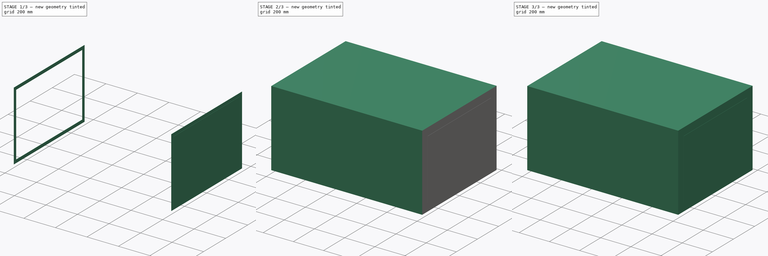
[diagram: build sequence overview — one tinted view per stage of 3, left to right]
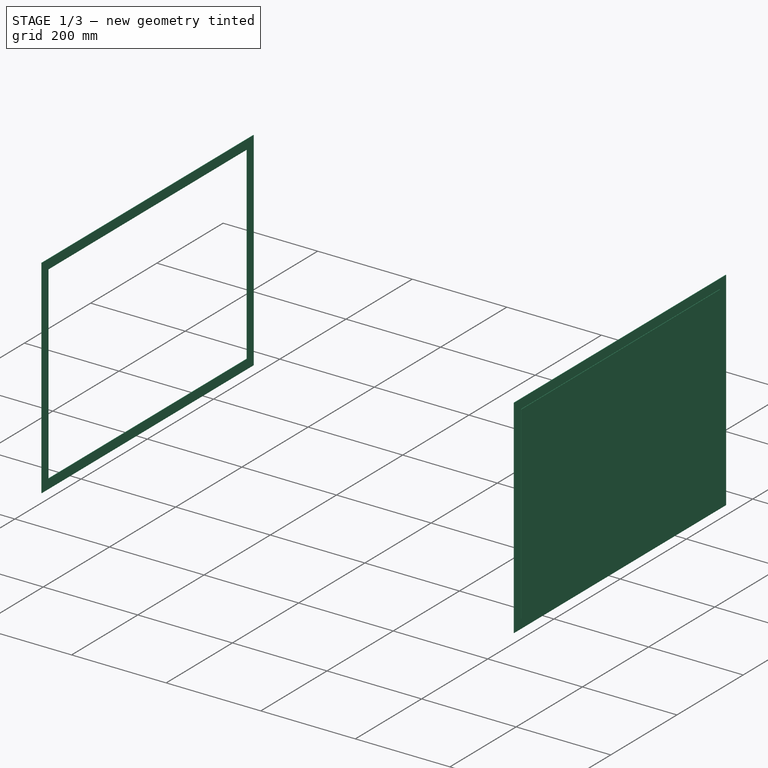
[diagram: stage 1 of 3 — iso view after this stage's code; geometry added in this stage tinted green]
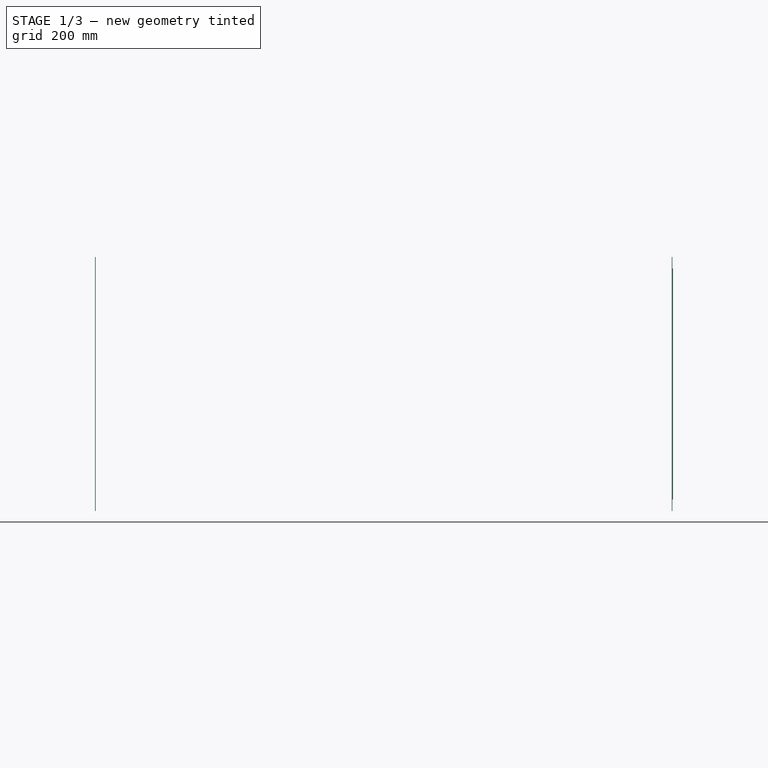
[diagram: stage 1 of 3 — front view after this stage's code; geometry added in this stage tinted green]
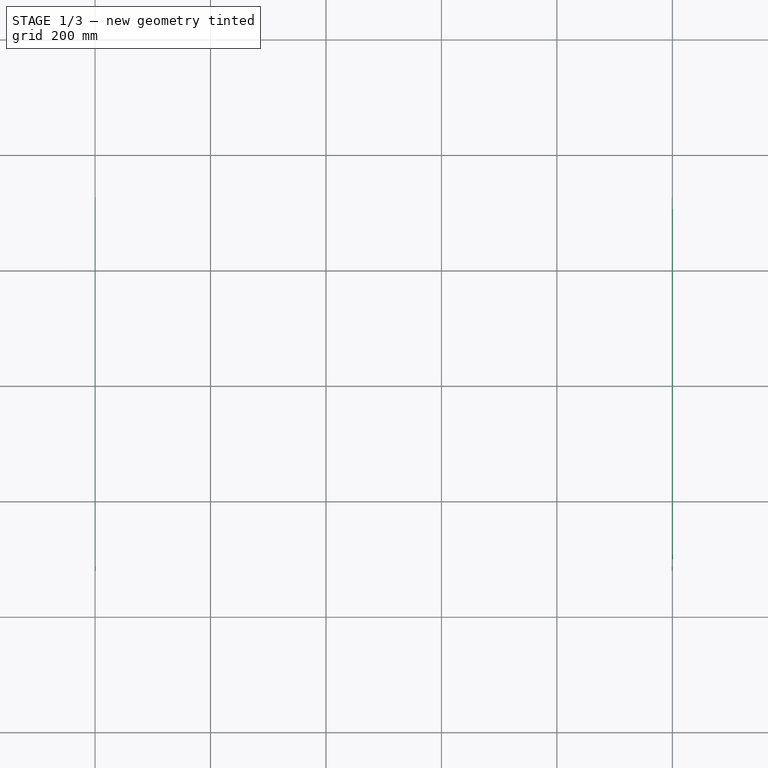
[diagram: stage 1 of 3 — top view after this stage's code; geometry added in this stage tinted green]
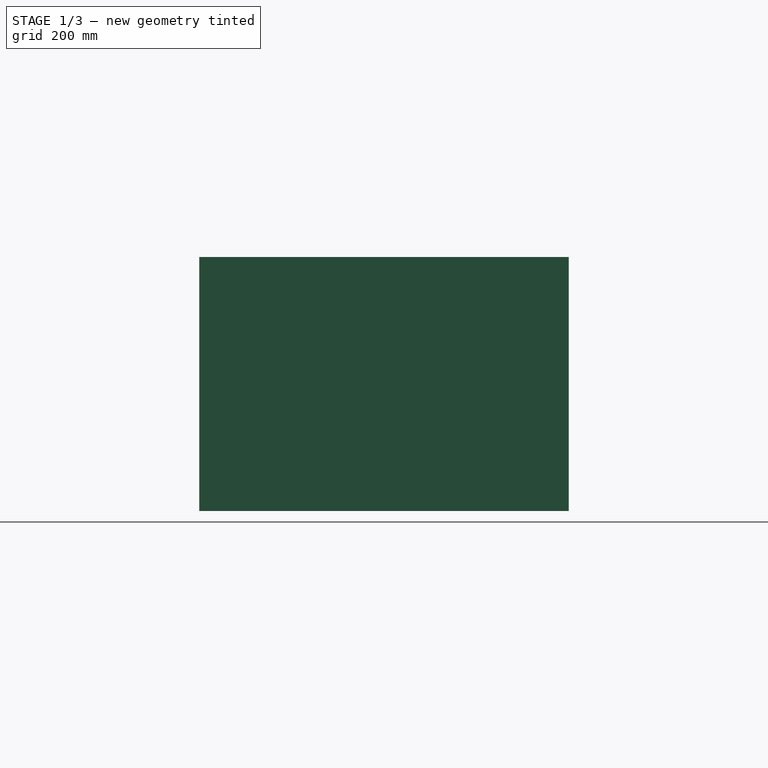
[diagram: stage 1 of 3 — right view after this stage's code; geometry added in this stage tinted green]
FCSTD DOCUMENT  (FreeCAD 1.0R38641 +468 (Git))
Label: Duct_linear_rectangular_complete_R06
License: Creative Commons Attribution 3.0
LicenseURL: https://creativecommons.org/licenses/by/3.0/
objects: Sketcher::SketchObject×9, App::DocumentObjectGroup×4, TechDraw::DrawViewPart×4, Part::Sweep×3, Part::Extrusion×3, App::MaterialObjectPython×2, Part::Cut×2, Spreadsheet::Sheet×1, TechDraw::DrawSVGTemplate×1, TechDraw::DrawViewSpreadsheet×1, Part::Part2DObjectPython×1, App::TextDocument×1, App::VarSet×1, TechDraw::DrawViewSection×1, TechDraw::DrawPage×1, App::DocumentObjectGroupPython×1
note: 27 computed .brp shape members not serialized (recipe doc carries the construction recipe); baked Part::Feature solids carry a one-line shape summary decoded from their .brp

FEATURE [TechDraw::DrawViewPart] View  label="Isometric"
  CoarseView = false
  Direction = (0.57735,-0.57735,0.57735)
  Focus = 100
  HardHidden = false
  IsoCount = 0
  IsoHidden = false
  IsoVisible = false
  LockPosition = false
  Perspective = false
  Rotation = 0
  Scale = 0.05
  ScaleType = 2
  ScrubCount = 0
  SeamHidden = false
  SeamVisible = true
  SmoothHidden = false
  SmoothVisible = true
  Source = -> [Cut,Cut001]
  X = 323.939
  XDirection = (0.707107,0.707107,0)
  Y = 221.919
  expr: Visibility = VarSet.Insulation_Insulation
FEATURE [TechDraw::DrawViewPart] View001  label="View 01"
  CoarseView = false
  Direction = (1,0,0)
  Focus = 100
  HardHidden = false
  IsoCount = 0
  IsoHidden = false
  IsoVisible = false
  LockPosition = false
  Perspective = false
  Rotation = 0
  Scale = 0.05
  ScaleType = 2
  ScrubCount = 0
  SeamHidden = false
  SeamVisible = true
  SmoothHidden = false
  SmoothVisible = true
  Source = -> [Cut,Cut001]
  X = 80.1145
  XDirection = (0,1,0)
  Y = 219.281
  expr: Visibility = VarSet.Insulation_Insulation
FEATURE [TechDraw::DrawViewPart] View002  label="View 02"
  CoarseView = false
  Direction = (-1,0,0)
  Focus = 100
  HardHidden = false
  IsoCount = 0
  IsoHidden = false
  IsoVisible = false
  LockPosition = false
  Perspective = false
  Rotation = 0
  Scale = 0.05
  ScaleType = 2
  ScrubCount = 0
  SeamHidden = false
  SeamVisible = true
  SmoothHidden = false
  SmoothVisible = true
  Source = -> [Cut,Cut001]
  X = 82.0365
  XDirection = (0,-1,0)
  Y = 94.9669
  expr: Visibility = VarSet.Insulation_Insulation
FEATURE [TechDraw::DrawViewPart] View003  label="View 03"
  CoarseView = false
  Direction = (0,-1,0)
  Focus = 100
  HardHidden = false
  IsoCount = 0
  IsoHidden = false
  IsoVisible = false
  LockPosition = false
  Perspective = false
  Rotation = 0
  Scale = 0.05
  ScaleType = 2
  ScrubCount = 0
  SeamHidden = false
  SeamVisible = true
  SmoothHidden = false
  SmoothVisible = true
  Source = -> [Cut,Cut001]
  X = 186.853
  XDirection = (1,0,0)
  Y = 93.0197
  expr: Visibility = VarSet.Insulation_Insulation
FEATURE [TechDraw::DrawViewSection] SectionView  label="Section 01"
  BaseView = -> View003
  CoarseView = false
  CutSurfaceDisplay = 2
  Direction = (1e-16,0,-1)
  FileGeomPattern = <path>
  FileHatchPattern = <path>
  Focus = 100
  FuseBeforeCut = false
  HardHidden = false
  HatchOffset = (0,0,0)
  HatchRotation = 0
  HatchScale = 1
  IsoCount = 0
  IsoHidden = false
  IsoVisible = false
  LockPosition = false
  NameGeomPattern = Diamante
  Perspective = false
  Rotation = 0
  Scale = 0.05
  ScaleType = 2
  ScrubCount = 0
  SeamHidden = false
  SeamVisible = true
  SectionDirection = 4
  SectionLineStretch = 1
  SectionNormal = (1e-16,0,-1)
  SectionOrigin = (495,0,0)
  SmoothHidden = false
  SmoothVisible = true
  Source = -> [Cut,Cut001]
  TrimAfterCut = false
  UsePreviousCut = false
  X = 198.666
  XDirection = (1,0,1e-16)
  Y = 215.282
  expr: Visibility = VarSet.Insulation_Insulation
FEATURE [TechDraw::DrawPage] Page  label="Sheet_01"
  KeepUpdated = true
  NextBalloonIndex = 1
  ProjectionType = 0
  Template = -> Template
  Views = -> [Sheet,View,View001,View002,View003,SectionView]
FEATURE [App::DocumentObjectGroup] Group002  label="Drawings_"
  Group = -> [Page]
FEATURE [App::DocumentObjectGroupPython] MaterialContainer001  label="Materials001"  # scripted group (container) (typed FeaturePython)
  Group = -> [Material049,Material050]
FEATURE [Part::Extrusion] Extrude  label="Flange1_"
  Area = 41600
  Base = -> Sketch026
  Dir = (1,0,0)
  DirMode = 2
  FaceMakerClass = Part::FaceMakerBullseye
  FaceMakerMode = 3
  LengthFwd = 1
  LengthRev = 0
  Solid = true
  Symmetric = false
  expr: Area = .Shape.Face9.Area
  expr: LengthFwd = VarSet.Flange_Thickness
  expr: Visibility = VarSet.Flange_Flange1 * (1 - VarSet.Duct_Show_volume_only)
FEATURE [Part::Extrusion] Extrude001  label="Flange2_"
  Area = 41600
  Base = -> Sketch027
  Dir = (1,0,0)
  DirMode = 2
  FaceMakerClass = Part::FaceMakerBullseye
  FaceMakerMode = 3
  LengthFwd = 1
  LengthRev = 0
  Reversed = true
  Solid = true
  Symmetric = false
  expr: Area = .Shape.Face9.Area
  expr: LengthFwd = VarSet.Flange_Thickness
  expr: Visibility = VarSet.Flange_Flange2 * (1 - VarSet.Duct_Show_volume_only)
FEATURE [Part::Extrusion] Extrude002  label="Closure_"
  Area = 240000
  Base = -> Sketch038
  Dir = (1,0,0)
  DirMode = 2
  FaceMakerClass = Part::FaceMakerBullseye
  FaceMakerMode = 3
  LengthFwd = 1
  LengthRev = 0
  Material = -> Material049
  Solid = true
  Symmetric = false
  expr: Area = .Shape.Face5.Area
  expr: LengthFwd = VarSet.Flange_Thickness
  expr: Material = VarSet.Materials_Sheet_metal
  expr: Visibility = VarSet.Duct_Opening2_closure * (1 - VarSet.Duct_Show_volume_only)
FEATURE [App::DocumentObjectGroup] Group  label="Components"
  Group = -> [Cut,Extrude,Extrude001,Cut001,Extrude002]
FEATURE [App::DocumentObjectGroup] Group003  label="Duct_linear_rectangular_#_"
  Group = -> [VarSet,Group,Group001,Group002,Text_document,MaterialContainer001]
note: 2 file-system paths scrubbed to <path> (originals preserved in the JSON sidecar)
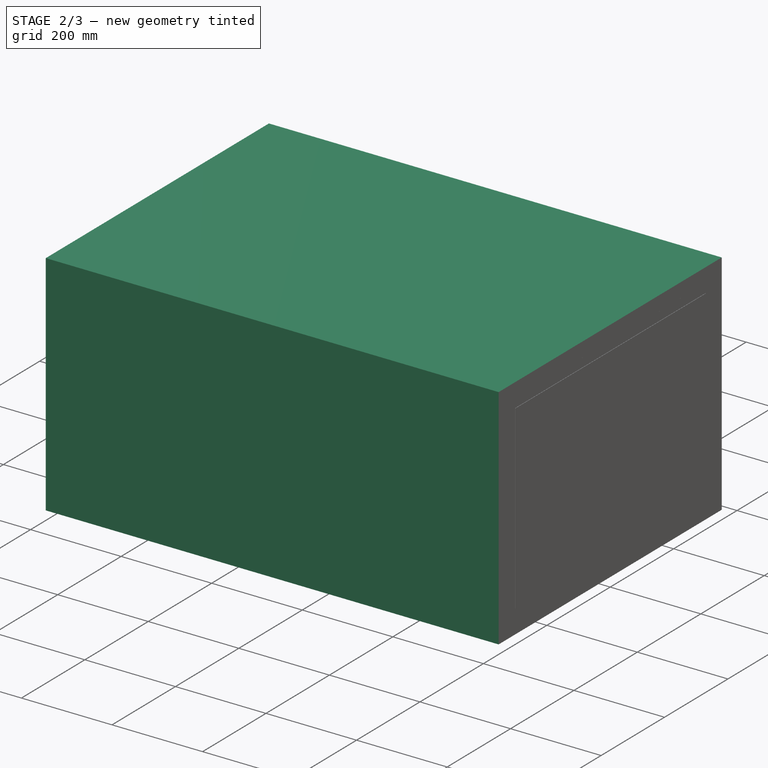
[diagram: stage 2 of 3 — iso view after this stage's code; geometry added in this stage tinted green]
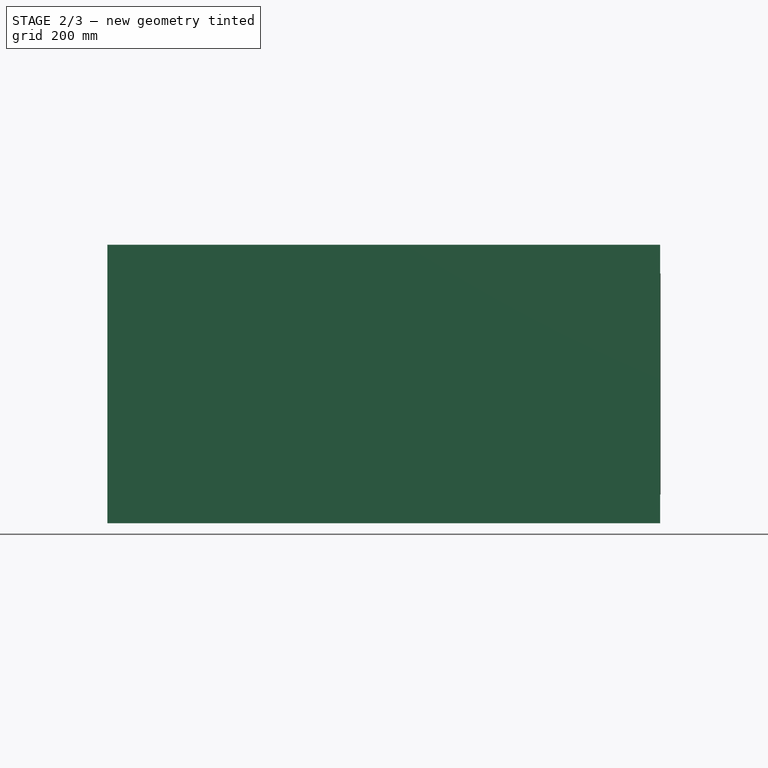
[diagram: stage 2 of 3 — front view after this stage's code; geometry added in this stage tinted green]
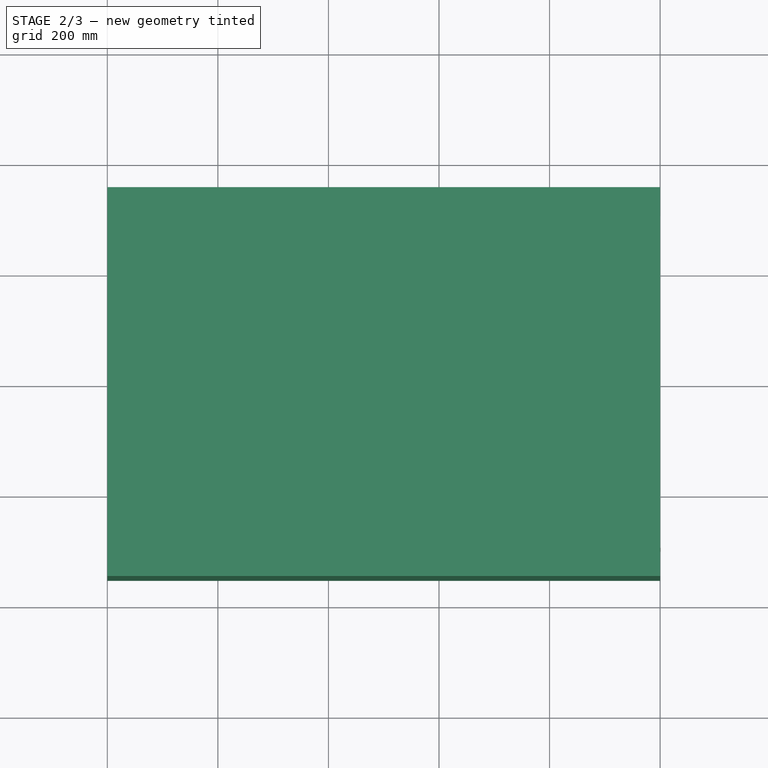
[diagram: stage 2 of 3 — top view after this stage's code; geometry added in this stage tinted green]
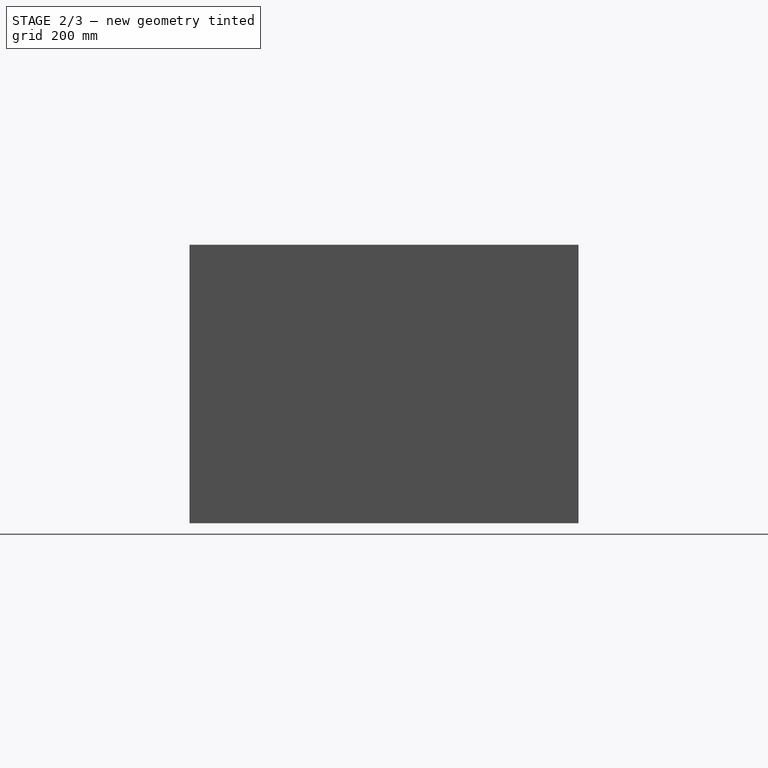
[diagram: stage 2 of 3 — right view after this stage's code; geometry added in this stage tinted green]
FEATURE [Sketcher::SketchObject] Sketch034  label="Opening_01_external_rectangular_"
  ArcFitTolerance = 0
  AttachmentOffset = pos=(0,0,-500) rot=(0,0,1;0rad)
  AttachmentSupport = -> [Line]
  FullyConstrained = true
  MakeInternals = false
  MapMode = 45
  Placement = pos=(0,0,0) rot=(0.57735,0.57735,0.57735;2.0944rad)
  expr: .AttachmentOffset.Base.z = -VarSet.Duct_Axis.Length / 2
  expr: .Constraints.Height = VarSet.Duct_Opening1_height + 2 * VarSet.Duct_Sheet_thickness
  expr: .Constraints.Width = VarSet.Duct_Opening1_width + 2 * VarSet.Duct_Sheet_thickness
  expr: AttachmentSupport = VarSet.Duct_Axis
  expr: MapReversed = VarSet.Duct_Flip_axis
  sketch-geometry (6):
    g0: LineSegment StartX=-301 StartY=201 StartZ=0 EndX=301 EndY=201 EndZ=0
    g1: LineSegment StartX=301 StartY=201 StartZ=0 EndX=301 EndY=-201 EndZ=0
    g2: LineSegment StartX=301 StartY=-201 StartZ=0 EndX=-301 EndY=-201 EndZ=0
    g3: LineSegment StartX=-301 StartY=-201 StartZ=0 EndX=-301 EndY=201 EndZ=0
    g4: LineSegment [constr] StartX=-301 StartY=201 StartZ=0 EndX=301 EndY=-201 EndZ=0
    g5: LineSegment [constr] StartX=-301 StartY=-201 StartZ=0 EndX=301 EndY=201 EndZ=0
  constraints (16):
    c: Coincident(g0,g1)
    c: Coincident(g1,g2)
    c: Coincident(g2,g3)
    c: Coincident(g3,g0)
    c: Horizontal(g0)
    c: Horizontal(g2)
    c: Vertical(g1)
    c: Vertical(g3)
    c: Coincident(g4,g0)
    c: Coincident(g4,g1)
    c: Coincident(g5,g2)
    c: Coincident(g5,g0)
    c: PointOnObject(g-1,g5)
    c: PointOnObject(g-1,g4)
    c: DistanceX(g0,g0) = 602  'Width'
    c: DistanceY(g1,g1) = 402  'Height'
FEATURE [Sketcher::SketchObject] Sketch035  label="Opening_02_external_rectangular_"
  ArcFitTolerance = 0
  AttachmentOffset = pos=(0,0,500) rot=(0,0,1;0rad)
  AttachmentSupport = -> [Line]
  FullyConstrained = true
  MakeInternals = false
  MapMode = 45
  Placement = pos=(1000,0,0) rot=(0.57735,0.57735,0.57735;2.0944rad)
  expr: .AttachmentOffset.Base.z = VarSet.Duct_Axis.Length / 2
  expr: .Constraints.Height = VarSet.Duct_Opening2_height + 2 * VarSet.Duct_Sheet_thickness
  expr: .Constraints.Horizontal_position = VarSet.Duct_Opening2_horizontal_position
  expr: .Constraints.Vertical_position = VarSet.Duct_Opening2_vertical_position
  expr: .Constraints.Width = VarSet.Duct_Opening2_width + 2 * VarSet.Duct_Sheet_thickness
  expr: AttachmentSupport = VarSet.Duct_Axis
  expr: MapReversed = VarSet.Duct_Flip_axis
  sketch-geometry (7):
    g0: LineSegment StartX=-301 StartY=201 StartZ=0 EndX=301 EndY=201 EndZ=0
    g1: LineSegment StartX=301 StartY=201 StartZ=0 EndX=301 EndY=-201 EndZ=0
    g2: LineSegment StartX=301 StartY=-201 StartZ=0 EndX=-301 EndY=-201 EndZ=0
    g3: LineSegment StartX=-301 StartY=-201 StartZ=0 EndX=-301 EndY=201 EndZ=0
    g4: LineSegment [constr] StartX=-301 StartY=201 StartZ=0 EndX=301 EndY=-201 EndZ=0
    g5: LineSegment [constr] StartX=-301 StartY=-201 StartZ=0 EndX=301 EndY=201 EndZ=0
    g6: GeomPoint [constr] X=0 Y=0 Z=0
  constraints (18):
    c: Coincident(g0,g1)
    c: Coincident(g1,g2)
    c: Coincident(g2,g3)
    c: Coincident(g3,g0)
    c: Horizontal(g0)
    c: Horizontal(g2)
    c: Vertical(g1)
    c: Vertical(g3)
    c: Coincident(g4,g0)
    c: Coincident(g4,g1)
    c: Coincident(g5,g2)
    c: Coincident(g5,g0)
    c: DistanceX(g0,g0) = 602  'Width'
    c: DistanceY(g1,g1) = 402  'Height'
    c: PointOnObject(g6,g4)
    c: PointOnObject(g6,g5)
    c: DistanceX(g-1,g6) = 0  'Horizontal_position'
    c: DistanceY(g-1,g6) = 0  'Vertical_position'
FEATURE [Part::Sweep] Sweep002  label="Sweep001_external_volume"
  Frenet = true
  Sections = -> [Sketch034,Sketch035]
  Solid = true
  Spine = -> Line
  Transition = 1
  expr: Spine = VarSet.Duct_Axis
  expr: Visibility = VarSet.Duct_Show_volume_only
FEATURE [Sketcher::SketchObject] Sketch036  label="Opening_01_external_insulation_rectangular_"
  ArcFitTolerance = 0
  AttachmentOffset = pos=(0,0,-500) rot=(0,0,1;0rad)
  AttachmentSupport = -> [Line]
  FullyConstrained = true
  MakeInternals = false
  MapMode = 45
  Placement = pos=(0,0,0) rot=(0.57735,0.57735,0.57735;2.0944rad)
  expr: .AttachmentOffset.Base.z = -VarSet.Duct_Axis.Length / 2
  expr: .Constraints.Height = VarSet.Duct_Opening1_height + 2 * VarSet.Duct_Sheet_thickness + 2 * VarSet.Insulation_Thickness
  expr: .Constraints.Width = VarSet.Duct_Opening1_width + 2 * VarSet.Duct_Sheet_thickness + 2 * VarSet.Insulation_Thickness
  expr: AttachmentSupport = VarSet.Duct_Axis
  expr: MapReversed = VarSet.Duct_Flip_axis
  sketch-geometry (6):
    g0: LineSegment StartX=-351.8 StartY=251.8 StartZ=0 EndX=351.8 EndY=251.8 EndZ=0
    g1: LineSegment StartX=351.8 StartY=251.8 StartZ=0 EndX=351.8 EndY=-251.8 EndZ=0
    g2: LineSegment StartX=351.8 StartY=-251.8 StartZ=0 EndX=-351.8 EndY=-251.8 EndZ=0
    g3: LineSegment StartX=-351.8 StartY=-251.8 StartZ=0 EndX=-351.8 EndY=251.8 EndZ=0
    g4: LineSegment [constr] StartX=-351.8 StartY=251.8 StartZ=0 EndX=351.8 EndY=-251.8 EndZ=0
    g5: LineSegment [constr] StartX=-351.8 StartY=-251.8 StartZ=0 EndX=351.8 EndY=251.8 EndZ=0
  constraints (16):
    c: Coincident(g0,g1)
    c: Coincident(g1,g2)
    c: Coincident(g2,g3)
    c: Coincident(g3,g0)
    c: Horizontal(g0)
    c: Horizontal(g2)
    c: Vertical(g1)
    c: Vertical(g3)
    c: Coincident(g4,g0)
    c: Coincident(g4,g1)
    c: Coincident(g5,g2)
    c: Coincident(g5,g0)
    c: PointOnObject(g-1,g5)
    c: PointOnObject(g-1,g4)
    c: DistanceX(g0,g0) = 703.6  'Width'
    c: DistanceY(g1,g1) = 503.6  'Height'
FEATURE [Sketcher::SketchObject] Sketch037  label="Opening_02_external_insulation_rectangular_"
  ArcFitTolerance = 0
  AttachmentOffset = pos=(0,0,500) rot=(0,0,1;0rad)
  AttachmentSupport = -> [Line]
  FullyConstrained = true
  MakeInternals = false
  MapMode = 45
  Placement = pos=(1000,0,0) rot=(0.57735,0.57735,0.57735;2.0944rad)
  expr: .AttachmentOffset.Base.z = VarSet.Duct_Axis.Length / 2
  expr: .Constraints.Height = VarSet.Duct_Opening2_height + 2 * VarSet.Duct_Sheet_thickness + 2 * VarSet.Insulation_Thickness
  expr: .Constraints.Horizontal_position = VarSet.Duct_Opening2_horizontal_position
  expr: .Constraints.Vertical_position = VarSet.Duct_Opening2_vertical_position
  expr: .Constraints.Width = VarSet.Duct_Opening2_width + 2 * VarSet.Duct_Sheet_thickness + 2 * VarSet.Insulation_Thickness
  expr: AttachmentSupport = VarSet.Duct_Axis
  expr: MapReversed = VarSet.Duct_Flip_axis
  sketch-geometry (7):
    g0: LineSegment StartX=-351.8 StartY=251.8 StartZ=0 EndX=351.8 EndY=251.8 EndZ=0
    g1: LineSegment StartX=351.8 StartY=251.8 StartZ=0 EndX=351.8 EndY=-251.8 EndZ=0
    g2: LineSegment StartX=351.8 StartY=-251.8 StartZ=0 EndX=-351.8 EndY=-251.8 EndZ=0
    g3: LineSegment StartX=-351.8 StartY=-251.8 StartZ=0 EndX=-351.8 EndY=251.8 EndZ=0
    g4: LineSegment [constr] StartX=-351.8 StartY=251.8 StartZ=0 EndX=351.8 EndY=-251.8 EndZ=0
    g5: LineSegment [constr] StartX=-351.8 StartY=-251.8 StartZ=0 EndX=351.8 EndY=251.8 EndZ=0
    g6: GeomPoint [constr] X=0 Y=0 Z=0
  constraints (18):
    c: Coincident(g0,g1)
    c: Coincident(g1,g2)
    c: Coincident(g2,g3)
    c: Coincident(g3,g0)
    c: Horizontal(g0)
    c: Horizontal(g2)
    c: Vertical(g1)
    c: Vertical(g3)
    c: Coincident(g4,g0)
    c: Coincident(g4,g1)
    c: Coincident(g5,g2)
    c: Coincident(g5,g0)
    c: DistanceX(g0,g0) = 703.6  'Width'
    c: DistanceY(g1,g1) = 503.6  'Height'
    c: PointOnObject(g6,g5)
    c: PointOnObject(g6,g4)
    c: DistanceX(g-1,g6) = 0  'Horizontal_position'
    c: DistanceY(g-1,g6) = 0  'Vertical_position'
FEATURE [Part::Sweep] Sweep003  label="Sweep001_external_insulation"
  Frenet = true
  Sections = -> [Sketch036,Sketch037]
  Solid = true
  Spine = -> Line
  Transition = 1
  expr: Spine = VarSet.Duct_Axis
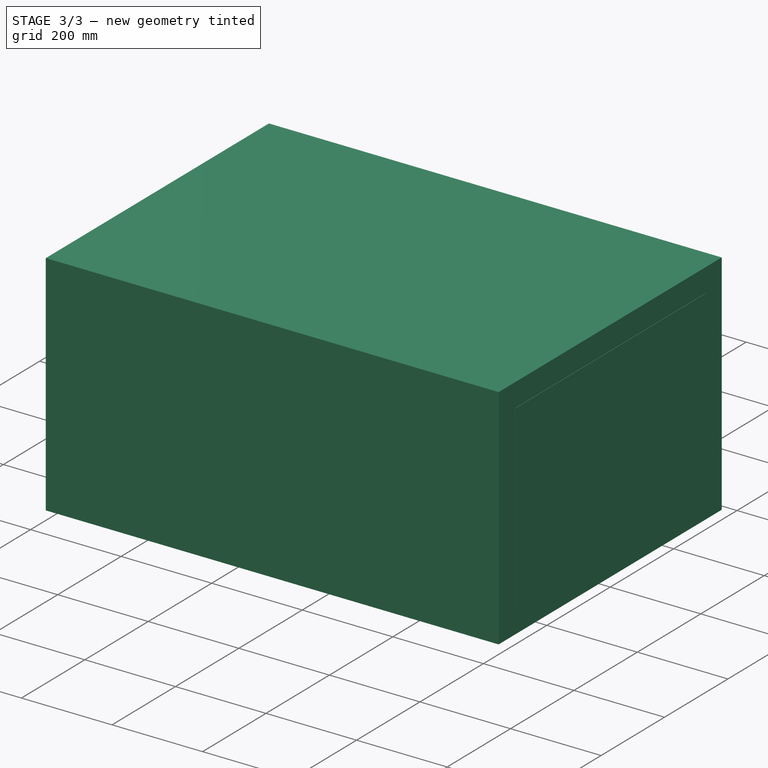
[diagram: stage 3 of 3 — iso view after this stage's code; geometry added in this stage tinted green]
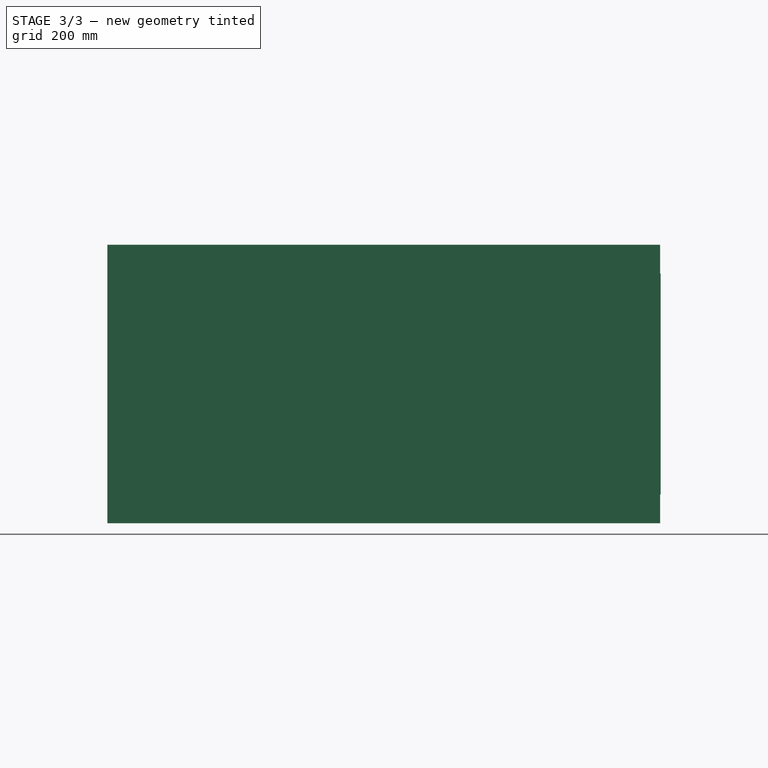
[diagram: stage 3 of 3 — front view after this stage's code; geometry added in this stage tinted green]
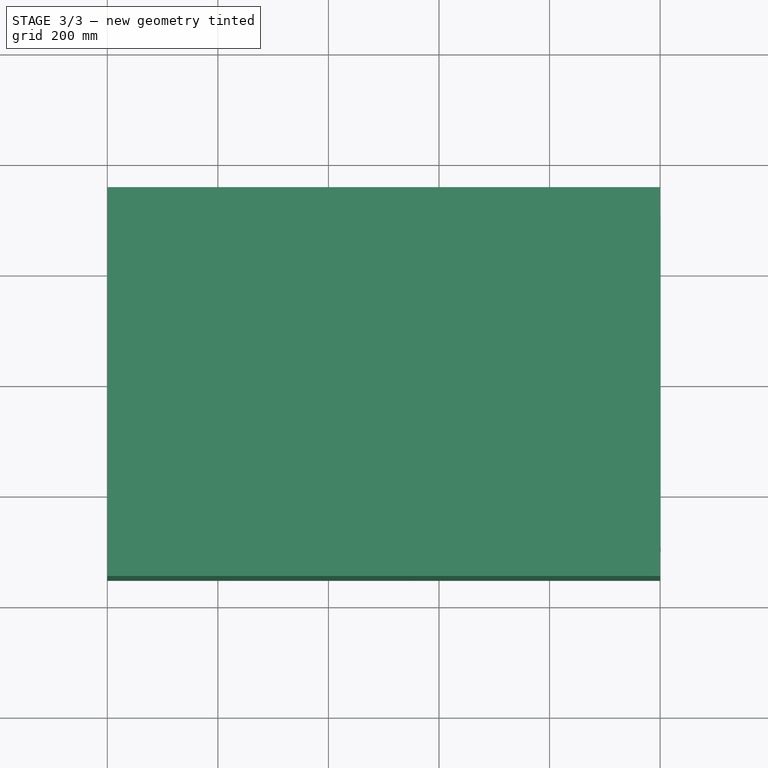
[diagram: stage 3 of 3 — top view after this stage's code; geometry added in this stage tinted green]
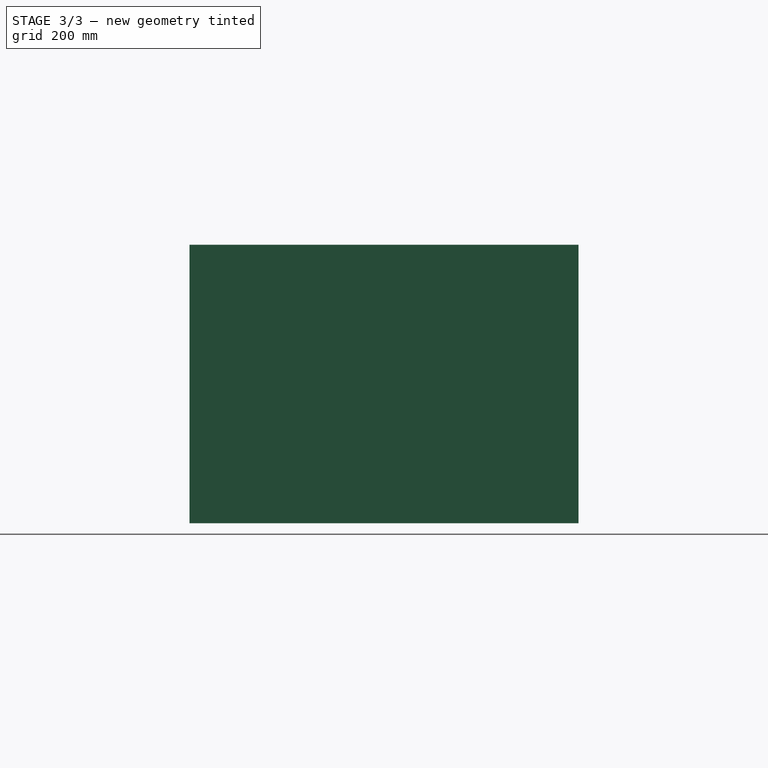
[diagram: stage 3 of 3 — right view after this stage's code; geometry added in this stage tinted green]
FEATURE [Spreadsheet::Sheet] Spreadsheet003  label="Output_duct_linear_rectangular"
  cells = A1='Description:; A2==<<Reducing duct for air conditioning of %s>> % VarSet.Duct_Axis.Length + << in lenght, composed of %s>> % VarSet.Duct_Sheet_thickness + << thick %s>> % VarSet.Materials_Sheet_metal.Label + << sheets (openings of %s x %s>> % tuple(VarSet.Duct_Opening1_height; VarSet.Duct_Opening1_width) + << and %s x %s>> % tuple(VarSet.Duct_Opening2_height; VarSet.Duct_Opening2_width) + <<)>> + VarSet.Insulation_Insulation * (<< with an external insulation layer of %s>> % VarSet.Insulation_Thickness + << thick %s>> % VarSet.Materials_Insulation.Label + << blanket>>) + <<.>>; A5='Components; B5='T; C5='W; D5='H; E5='L; F5='A; G5='Material; A6='1. Duct; F6==Cut.Base_Area + Extrude002.Area * VarSet.Duct_Opening2_closure; G6==VarSet.Materials_Sheet_metal.Label; A7='1.1. Duct length:; E7==VarSet.Duct_Axis.Length; A8='1.2. Opening 1:; C8==VarSet.Duct_Opening1_width; D8==VarSet.Duct_Opening1_height; A9='1.3. Opening2:; C9==VarSet.Duct_Opening2_width; D9==VarSet.Duct_Opening2_height; A10='1.4. Sheet thickness:; B10==VarSet.Duct_Sheet_thickness; A11='2. Flanges; F11==(VarSet.Flange_Flange1 + VarSet.Flange_Flange2 - VarSet.Flange_Flange1 * VarSet.Flange_Flange2) * (Extrude.Area * VarSet.Flange_Flange1 + Extrude001.Area * VarSet.Flange_Flange2); G11==(VarSet.Flange_Flange1 + VarSet.Flange_Flange2 - VarSet.Flange_Flange1 * VarSet.Flange_Flange2) * VarSet.Materials_Sheet_metal.Label; A12='2.1. Flanges height:; D12==(VarSet.Flange_Flange1 + VarSet.Flange_Flange2 - VarSet.Flange_Flange1 * VarSet.Flange_Flange2) * str(VarSet.Flange_Height); A13='2.2. Flanges thickness:; E13==(VarSet.Flange_Flange1 + VarSet.Flange_Flange2 - VarSet.Flange_Flange1 * VarSet.Flange_Flange2) * str(VarSet.Flange_Thickness); A14='3. Insulation; F14==VarSet.Insulation_Insulation * str(round(Cut001.Base_Area)) + <<--->> * (1 - VarSet.Insulation_Insulation); G14==VarSet.Insulation_Insulation * VarSet.Materials_Insulation.Label + <<--->> * (1 - VarSet.Insulation_Insulation); A15='3.1. Insulation thickness:; E15==VarSet.Insulation_Insulation * str(VarSet.Insulation_Thickness) + <<--->> * (1 - VarSet.Insulation_Insulation)
FEATURE [App::DocumentObjectGroup] Group001  label="Spreadsheet_output_"
  Group = -> [Spreadsheet003]
FEATURE [TechDraw::DrawSVGTemplate] Template
  EditableTexts = AUTHOR_NAME=AUTHOR NAME; DN=DN; DRAWING_TITLE=DRAWING TITLE; FC-DATE=DD/MM/YYYY; FC-REV=REV A; FC-SC=1/20; FC-SH=X / Y; FC-SI=A3; FreeCAD_DRAWING=Rectangular duct; PN=PN
  Height = 297
  Orientation = 1
  Template = <userpath>/.cache/FreeCAD/Cache/FreeCAD_Doc_4981bfa1-569c-477a-b416-fe8666e2ccff_ef422a_6794/A3_Landscape_ISO7200TD.svg
  Width = 420
FEATURE [TechDraw::DrawViewSpreadsheet] Sheet  label="Spreadsheet"
  CellEnd = G15
  CellStart = A5
  Font = Arial
  LineWidth = 0.35
  LockPosition = false
  Rotation = 0
  Scale = 0.75
  ScaleType = 2
  Source = -> Spreadsheet003
  Symbol = <blob: 18028 chars omitted>
  TextSize = 14
  X = 319.661
  Y = 104.246
  expr: Scale = 0.75
FEATURE [Part::Part2DObjectPython] Line  label="Axis"  # Draft 2D object (typed FeaturePython)
  Area = 0
  ChamferSize = 0
  Closed = false
  End = (1000,0,0)
  FilletRadius = 0
  Length = 1000
  MakeFace = true
  Points = (2) [(0,0,0),(1000,0,0)]
  Start = (0,0,0)
  Subdivisions = 0
FEATURE [Sketcher::SketchObject] Sketch026  label="Flange1_003"
  ArcFitTolerance = 0
  AttachmentOffset = pos=(0,0,-500) rot=(0,0,1;0rad)
  AttachmentSupport = -> [Line]
  FullyConstrained = true
  MakeInternals = false
  MapMode = 45
  Placement = pos=(0,0,0) rot=(0.57735,0.57735,0.57735;2.0944rad)
  expr: .AttachmentOffset.Base.z = -VarSet.Duct_Axis.Length / 2
  expr: .Constraints.Height_exterior = VarSet.Duct_Opening1_height + 2 * VarSet.Flange_Height
  expr: .Constraints.Height_interior = VarSet.Duct_Opening1_height
  expr: .Constraints.Width_exterior = VarSet.Duct_Opening1_width + 2 * VarSet.Flange_Height
  expr: .Constraints.width_interior = VarSet.Duct_Opening1_width
  expr: AttachmentSupport = VarSet.Duct_Axis
  expr: MapReversed = VarSet.Duct_Flip_axis
  sketch-geometry (8):
    g0: LineSegment StartX=-300 StartY=200 StartZ=0 EndX=300 EndY=200 EndZ=0
    g1: LineSegment StartX=300 StartY=200 StartZ=0 EndX=300 EndY=-200 EndZ=0
    g2: LineSegment StartX=300 StartY=-200 StartZ=0 EndX=-300 EndY=-200 EndZ=0
    g3: LineSegment StartX=-300 StartY=-200 StartZ=0 EndX=-300 EndY=200 EndZ=0
    g4: LineSegment StartX=-320 StartY=220 StartZ=0 EndX=320 EndY=220 EndZ=0
    g5: LineSegment StartX=320 StartY=220 StartZ=0 EndX=320 EndY=-220 EndZ=0
    g6: LineSegment StartX=320 StartY=-220 StartZ=0 EndX=-320 EndY=-220 EndZ=0
    g7: LineSegment StartX=-320 StartY=-220 StartZ=0 EndX=-320 EndY=220 EndZ=0
  constraints (20):
    c: Coincident(g0,g1)
    c: Coincident(g1,g2)
    c: Coincident(g2,g3)
    c: Coincident(g3,g0)
    c: Horizontal(g2)
    c: Vertical(g1)
    c: Coincident(g4,g5)
    c: Coincident(g5,g6)
    c: Coincident(g6,g7)
    c: Coincident(g7,g4)
    c: Horizontal(g6)
    c: Symmetric(g0,g0,g-2)
    c: Symmetric(g0,g2,g-1)
    c: Symmetric(g4,g4,g-2)
    c: Vertical(g7)
    c: Symmetric(g4,g5,g-1)
    c: DistanceX(g4,g4) = 640  'Width_exterior'
    c: DistanceX(g0,g0) = 600  'width_interior'
    c: DistanceY(g1,g1) = 400  'Height_interior'
    c: DistanceY(g7,g7) = 440  'Height_exterior'
FEATURE [Sketcher::SketchObject] Sketch027  label="Flange2_003"
  ArcFitTolerance = 0
  AttachmentOffset = pos=(0,0,500) rot=(0,0,1;0rad)
  AttachmentSupport = -> [Line]
  FullyConstrained = true
  MakeInternals = false
  MapMode = 45
  Placement = pos=(1000,0,0) rot=(0.57735,0.57735,0.57735;2.0944rad)
  expr: .AttachmentOffset.Base.z = VarSet.Duct_Axis.Length / 2
  expr: .Constraints.Horizontal_position = VarSet.Duct_Opening2_horizontal_position
  expr: .Constraints.Vertical_position = VarSet.Duct_Opening2_vertical_position
  expr: AttachmentSupport = VarSet.Duct_Axis
  expr: Constraints[18] = VarSet.Duct_Opening2_width + 2 * VarSet.Flange_Height
  expr: Constraints[19] = VarSet.Duct_Opening2_height + 2 * VarSet.Flange_Height
  expr: Constraints[8] = VarSet.Duct_Opening2_width
  expr: Constraints[9] = VarSet.Duct_Opening2_height
  expr: MapReversed = VarSet.Duct_Flip_axis
  sketch-geometry (13):
    g0: LineSegment StartX=-300 StartY=200 StartZ=0 EndX=300 EndY=200 EndZ=0
    g1: LineSegment StartX=300 StartY=200 StartZ=0 EndX=300 EndY=-200 EndZ=0
    g2: LineSegment StartX=300 StartY=-200 StartZ=0 EndX=-300 EndY=-200 EndZ=0
    g3: LineSegment StartX=-300 StartY=-200 StartZ=0 EndX=-300 EndY=200 EndZ=0
    g4: LineSegment StartX=-320 StartY=220 StartZ=0 EndX=320 EndY=220 EndZ=0
    g5: LineSegment StartX=320 StartY=220 StartZ=0 EndX=320 EndY=-220 EndZ=0
    g6: LineSegment StartX=320 StartY=-220 StartZ=0 EndX=-320 EndY=-220 EndZ=0
    g7: LineSegment StartX=-320 StartY=-220 StartZ=0 EndX=-320 EndY=220 EndZ=0
    g8: LineSegment [constr] StartX=-300 StartY=200 StartZ=0 EndX=300 EndY=-200 EndZ=0
    g9: LineSegment [constr] StartX=-300 StartY=-200 StartZ=0 EndX=300 EndY=200 EndZ=0
    g10: LineSegment [constr] StartX=-320 StartY=220 StartZ=0 EndX=320 EndY=-220 EndZ=0
    g11: LineSegment [constr] StartX=-320 StartY=-220 StartZ=0 EndX=320 EndY=220 EndZ=0
    g12: GeomPoint [constr] X=0 Y=0 Z=0
  constraints (34):
    c: Coincident(g0,g1)
    c: Coincident(g1,g2)
    c: Coincident(g2,g3)
    c: Coincident(g3,g0)
    c: Horizontal(g0)
    c: Horizontal(g2)
    c: Vertical(g1)
    c: Vertical(g3)
    c: DistanceX(g0,g0) = 600
    c: DistanceY(g1,g1) = 400
    c: Coincident(g4,g5)
    c: Coincident(g5,g6)
    c: Coincident(g6,g7)
    c: Coincident(g7,g4)
    c: Horizontal(g4)
    c: Horizontal(g6)
    c: Vertical(g5)
    c: Vertical(g7)
    c: DistanceX(g4,g4) = 640
    c: DistanceY(g5,g5) = 440
    c: Coincident(g8,g0)
    c: Coincident(g8,g1)
    c: Coincident(g9,g2)
    c: Coincident(g9,g0)
    c: Coincident(g10,g4)
    c: Coincident(g10,g5)
    c: Coincident(g11,g6)
    c: Coincident(g11,g4)
    c: PointOnObject(g12,g11)
    c: PointOnObject(g12,g10)
    c: PointOnObject(g12,g8)
    c: PointOnObject(g12,g9)
    c: DistanceX(g-1,g12) = 0  'Horizontal_position'
    c: DistanceY(g-1,g12) = 0  'Vertical_position'
FEATURE [Sketcher::SketchObject] Sketch  label="Opening_01_internal_rectangular_"
  ArcFitTolerance = 0
  AttachmentOffset = pos=(0,0,-500) rot=(0,0,1;0rad)
  AttachmentSupport = -> [Line]
  FullyConstrained = true
  MakeInternals = false
  MapMode = 45
  Placement = pos=(0,0,0) rot=(0.57735,0.57735,0.57735;2.0944rad)
  expr: .AttachmentOffset.Base.z = -VarSet.Duct_Axis.Length / 2
  expr: .Constraints.Height = VarSet.Duct_Opening1_height
  expr: .Constraints.Width = VarSet.Duct_Opening1_width
  expr: AttachmentSupport = VarSet.Duct_Axis
  expr: MapReversed = VarSet.Duct_Flip_axis
  sketch-geometry (6):
    g0: LineSegment StartX=-300 StartY=200 StartZ=0 EndX=300 EndY=200 EndZ=0
    g1: LineSegment StartX=300 StartY=200 StartZ=0 EndX=300 EndY=-200 EndZ=0
    g2: LineSegment StartX=300 StartY=-200 StartZ=0 EndX=-300 EndY=-200 EndZ=0
    g3: LineSegment StartX=-300 StartY=-200 StartZ=0 EndX=-300 EndY=200 EndZ=0
    g4: LineSegment [constr] StartX=-300 StartY=200 StartZ=0 EndX=300 EndY=-200 EndZ=0
    g5: LineSegment [constr] StartX=-300 StartY=-200 StartZ=0 EndX=300 EndY=200 EndZ=0
  constraints (16):
    c: Coincident(g0,g1)
    c: Coincident(g1,g2)
    c: Coincident(g2,g3)
    c: Coincident(g3,g0)
    c: Horizontal(g0)
    c: Horizontal(g2)
    c: Vertical(g1)
    c: Vertical(g3)
    c: Coincident(g4,g0)
    c: Coincident(g4,g1)
    c: Coincident(g5,g2)
    c: Coincident(g5,g0)
    c: PointOnObject(g-1,g5)
    c: PointOnObject(g-1,g4)
    c: DistanceX(g0,g0) = 600  'Width'
    c: DistanceY(g1,g1) = 400  'Height'
FEATURE [Sketcher::SketchObject] Sketch033  label="Opening_02_internal_rectangular_"
  ArcFitTolerance = 0
  AttachmentOffset = pos=(0,0,500) rot=(0,0,1;0rad)
  AttachmentSupport = -> [Line]
  FullyConstrained = true
  MakeInternals = false
  MapMode = 45
  Placement = pos=(1000,0,0) rot=(0.57735,0.57735,0.57735;2.0944rad)
  expr: .AttachmentOffset.Base.z = VarSet.Duct_Axis.Length / 2
  expr: .Constraints.Height = VarSet.Duct_Opening2_height
  expr: .Constraints.Horizontal_position = VarSet.Duct_Opening2_horizontal_position
  expr: .Constraints.Vertical_position = VarSet.Duct_Opening2_vertical_position
  expr: .Constraints.Width = VarSet.Duct_Opening2_width
  expr: AttachmentSupport = VarSet.Duct_Axis
  expr: MapReversed = VarSet.Duct_Flip_axis
  sketch-geometry (7):
    g0: LineSegment StartX=-300 StartY=200 StartZ=0 EndX=300 EndY=200 EndZ=0
    g1: LineSegment StartX=300 StartY=200 StartZ=0 EndX=300 EndY=-200 EndZ=0
    g2: LineSegment StartX=300 StartY=-200 StartZ=0 EndX=-300 EndY=-200 EndZ=0
    g3: LineSegment StartX=-300 StartY=-200 StartZ=0 EndX=-300 EndY=200 EndZ=0
    g4: LineSegment [constr] StartX=-300 StartY=200 StartZ=0 EndX=300 EndY=-200 EndZ=0
    g5: LineSegment [constr] StartX=-300 StartY=-200 StartZ=0 EndX=300 EndY=200 EndZ=0
    g6: GeomPoint [constr] X=0 Y=0 Z=0
  constraints (18):
    c: Coincident(g0,g1)
    c: Coincident(g1,g2)
    c: Coincident(g2,g3)
    c: Coincident(g3,g0)
    c: Horizontal(g0)
    c: Horizontal(g2)
    c: Vertical(g1)
    c: Vertical(g3)
    c: Coincident(g4,g0)
    c: Coincident(g4,g1)
    c: Coincident(g5,g2)
    c: Coincident(g5,g0)
    c: DistanceX(g0,g0) = 600  'Width'
    c: DistanceY(g1,g1) = 400  'Height'
    c: PointOnObject(g6,g5)
    c: PointOnObject(g6,g4)
    c: DistanceY(g-1,g6) = 0  'Vertical_position'
    c: DistanceX(g-1,g6) = 0  'Horizontal_position'
FEATURE [Part::Sweep] Sweep001  label="Sweep001_internal_"
  Frenet = true
  Sections = -> [Sketch,Sketch033]
  Solid = true
  Spine = -> Line
  Transition = 1
  expr: Spine = VarSet.Duct_Axis
FEATURE [Sketcher::SketchObject] Sketch038  label="Closure2_"
  ArcFitTolerance = 0
  AttachmentOffset = pos=(0,0,500) rot=(0,0,1;0rad)
  AttachmentSupport = -> [Line]
  FullyConstrained = true
  MakeInternals = false
  MapMode = 45
  Placement = pos=(1000,0,0) rot=(0.57735,0.57735,0.57735;2.0944rad)
  expr: .AttachmentOffset.Base.z = VarSet.Duct_Axis.Length / 2
  expr: .Constraints.Horizontal_position = VarSet.Duct_Opening2_horizontal_position
  expr: .Constraints.Vertical_position = VarSet.Duct_Opening2_vertical_position
  expr: AttachmentSupport = VarSet.Duct_Axis
  expr: Constraints[8] = VarSet.Duct_Opening2_width
  expr: Constraints[9] = VarSet.Duct_Opening2_height
  expr: MapReversed = VarSet.Duct_Flip_axis
  sketch-geometry (7):
    g0: LineSegment StartX=-300 StartY=200 StartZ=0 EndX=300 EndY=200 EndZ=0
    g1: LineSegment StartX=300 StartY=200 StartZ=0 EndX=300 EndY=-200 EndZ=0
    g2: LineSegment StartX=300 StartY=-200 StartZ=0 EndX=-300 EndY=-200 EndZ=0
    g3: LineSegment StartX=-300 StartY=-200 StartZ=0 EndX=-300 EndY=200 EndZ=0
    g4: LineSegment [constr] StartX=-300 StartY=200 StartZ=0 EndX=300 EndY=-200 EndZ=0
    g5: LineSegment [constr] StartX=-300 StartY=-200 StartZ=0 EndX=300 EndY=200 EndZ=0
    g6: GeomPoint [constr] X=0 Y=0 Z=0
  constraints (18):
    c: Coincident(g0,g1)
    c: Coincident(g1,g2)
    c: Coincident(g2,g3)
    c: Coincident(g3,g0)
    c: Horizontal(g0)
    c: Horizontal(g2)
    c: Vertical(g1)
    c: Vertical(g3)
    c: DistanceX(g0,g0) = 600
    c: DistanceY(g1,g1) = 400
    c: Coincident(g4,g0)
    c: Coincident(g4,g1)
    c: Coincident(g5,g2)
    c: Coincident(g5,g0)
    c: PointOnObject(g6,g4)
    c: PointOnObject(g6,g5)
    c: DistanceX(g-1,g6) = 0  'Horizontal_position'
    c: DistanceY(g-1,g6) = 0  'Vertical_position'
FEATURE [App::TextDocument] Text_document  label="Instructions"
  Text = 1. Construction of the axes in the final position of the project:\n\n. Use only individual lines and curves to construct the axes in the final position of the duct network project, one for each duct section;\n\n. Do not use polylines or sketches. If there is already a network with these elements, transform them into individual lines and curves;\n\n. Before applying the ducts in the final network, review the spreadsheets and drawings of the duct files according to the project needs. This will reduce the final review work (see item 3). Be careful not to erase the automation (using expressions) contained in the spreadsheet fields.\n\n2. Application of the component in the final project (see the corresponding tutorial videos):\n\n. In the duct properties window, replace the existing axis with the corresponding section of the final project (Axis of Ducts field);\n\n. Adjust the diameters of openings 1 and 2 according to the project (if the pre-configured diameters are large in relation to the radius of the duct axis, this may distort the shape of the duct, but this can be corrected by adjusting these diameters;\n\n. If necessary, invert the duct axis so that openings 1 or 2 swap positions (Flip_axis field of Ducts);\n\n3. Review of individual drawings\n\n. After inserting the ducts into the designed network, review the individual drawings contained in the duct files, according to your needs (scale, dimensions, notes, views, etc.).\n\n4. General drawing of the network\n\n. If you prefer, you can create a spreadsheet of the ducts used linked to the individual ones, presenting a summary of the descriptions, areas, materials, dimensions, as well as their sums.\n\n5. Help and comments\n\n. If you encounter any problems and require help or want to make a comment, use the FreeCAD forum for this purpose.
FEATURE [App::MaterialObjectPython] Material049  label="galvanized steel generic"  # material (typed FeaturePython)
  Material = AuthorAndLicense=Uwe Stöhr; CardName=Iron-Generic; Color=(0.8, 0.8, 0.8, 1.0); Density=7874 kg/m^3; DiffuseColor=(0.3607843220233917, 0.3607843220233917, 0.40784314274787903); ElectricalConductivity=10.3 MS/m; Father=Metal; KindOfMaterial=Iron; Name=galvanized steel generic; PoissonRatio=0.29; RelativePermeability=5000.0; SectionColor=(0.8, 0.8, 0.8, 1.0); ShearModulus=82.0 GPa; SpecificHeat=460.5 J/kg/K; ThermalConductivity=80.4 W/m/K; ThermalExpansionCoefficient=11.8 µm/m/K; Transparency=0; UltimateTensileStrength=497 MPa; ViewColor=(0.8, 0.8, 0.8, 1.0); YieldStrength=428 MPa; YoungsModulus=211 GPa
  Transparency = 0
FEATURE [Part::Cut] Cut  label="Duct_rectangular_"
  Base = -> Sweep002
  Base_Area = 2008000
  Material = -> Material049
  Tool = -> Sweep001
  expr: Base_Area = .Shape.Face1.Area + .Shape.Face2.Area + .Shape.Face4.Area + .Shape.Face6.Area
  expr: Material = VarSet.Materials_Sheet_metal
  expr: Visibility = VarSet.Duct_Duct * (1 - VarSet.Duct_Show_volume_only)
FEATURE [App::MaterialObjectPython] Material050  label="glass wool with aluminium foill generic"  # material (typed FeaturePython)
  Material = AuthorAndLicense=Uwe Stöhr; CardName=Iron-Generic; Color=(0.8, 0.8, 0.8, 1.0); Density=7874 kg/m^3; DiffuseColor=(0.7372549176216125, 0.7372549176216125, 0.7372549176216125); ElectricalConductivity=10.3 MS/m; Father=Metal; KindOfMaterial=Iron; Name=glass wool with aluminium foill generic; PoissonRatio=0.29; RelativePermeability=5000.0; SectionColor=(0.8, 0.8, 0.8, 1.0); ShearModulus=82.0 GPa; SpecificHeat=460.5 J/kg/K; ThermalConductivity=80.4 W/m/K; ThermalExpansionCoefficient=11.8 µm/m/K; Transparency=0; UltimateTensileStrength=497 MPa; ViewColor=(0.8, 0.8, 0.8, 1.0); YieldStrength=428 MPa; YoungsModulus=211 GPa
  Transparency = 0
FEATURE [App::VarSet] VarSet  label="Duct_linear_rectangular_properties"
  Duct_Axis = -> Line
  Duct_Duct = true
  Duct_Flip_axis = false
  Duct_Opening1_height = 400
  Duct_Opening1_width = 600
  Duct_Opening2_closure = false
  Duct_Opening2_height = 400
  Duct_Opening2_horizontal_position = 0
  Duct_Opening2_vertical_position = 0
  Duct_Opening2_width = 600
  Duct_Sheet_thickness = 1
  Duct_Show_volume_only = false
  Flange_Flange1 = true
  Flange_Flange2 = true
  Flange_Height = 20
  Flange_Thickness = 1
  Insulation_Insulation = false
  Insulation_Thickness = 50.8
  Materials_Insulation = -> Material050
  Materials_Sheet_metal = -> Material049
FEATURE [Part::Cut] Cut001  label="Insulation_"
  Base = -> Sweep003
  Base_Area = 2414400
  Material = -> Material050
  Tool = -> Sweep002
  expr: Base_Area = .Shape.Face1.Area + .Shape.Face2.Area + .Shape.Face4.Area + .Shape.Face6.Area
  expr: Material = VarSet.Materials_Insulation
  expr: Visibility = VarSet.Insulation_Insulation * (1 - VarSet.Duct_Show_volume_only)
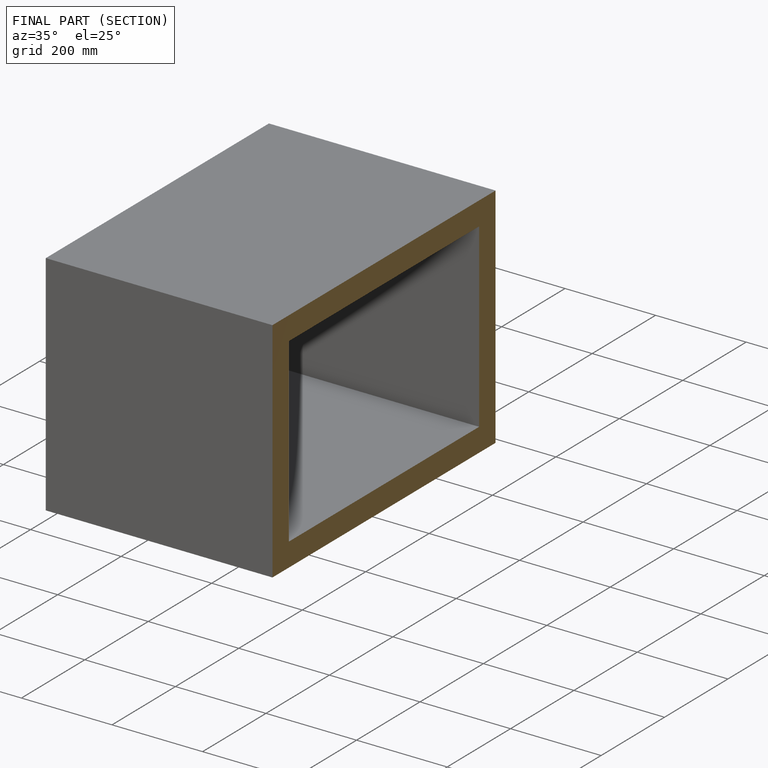
[diagram: finished part — half-section view (interior)]
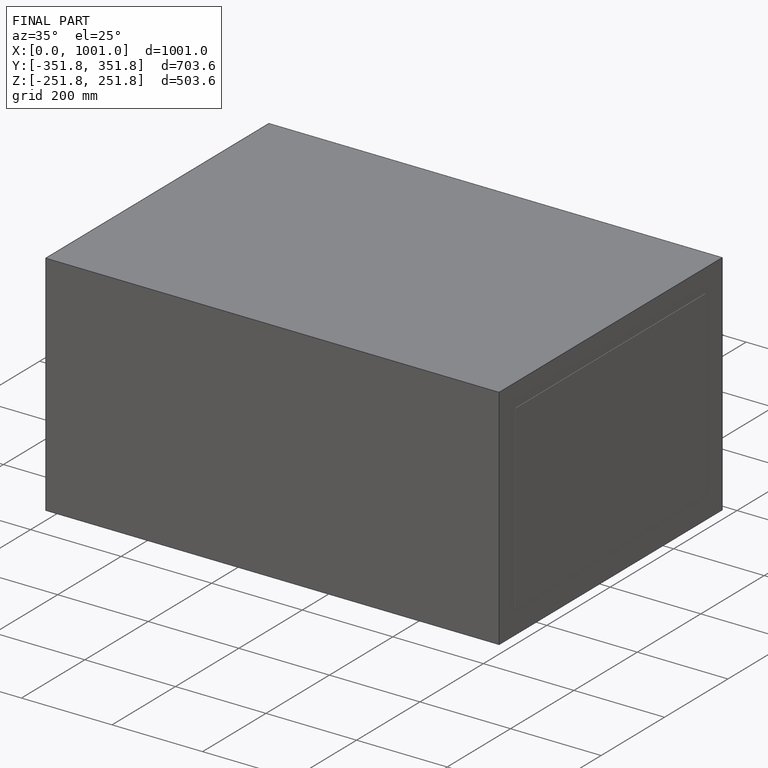
[diagram: finished part — iso view with bounding-box wireframe]
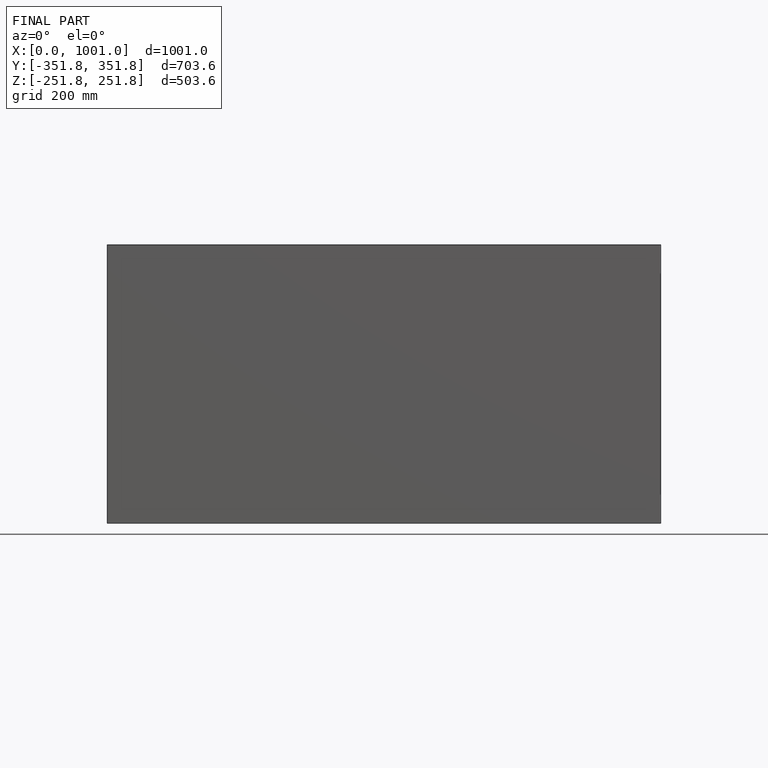
[diagram: finished part — front view with bounding-box wireframe]
